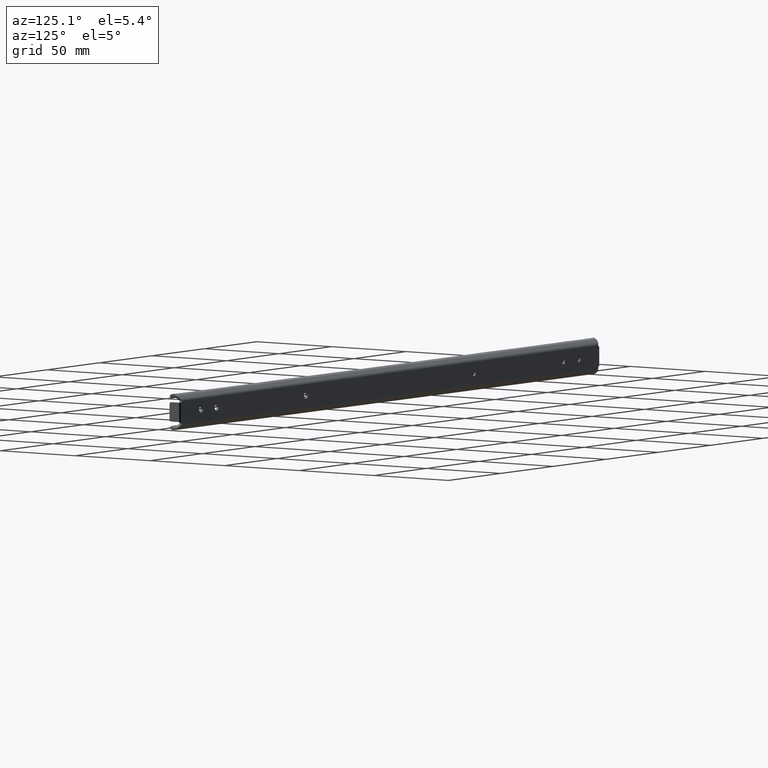
[diagram: clean part render]
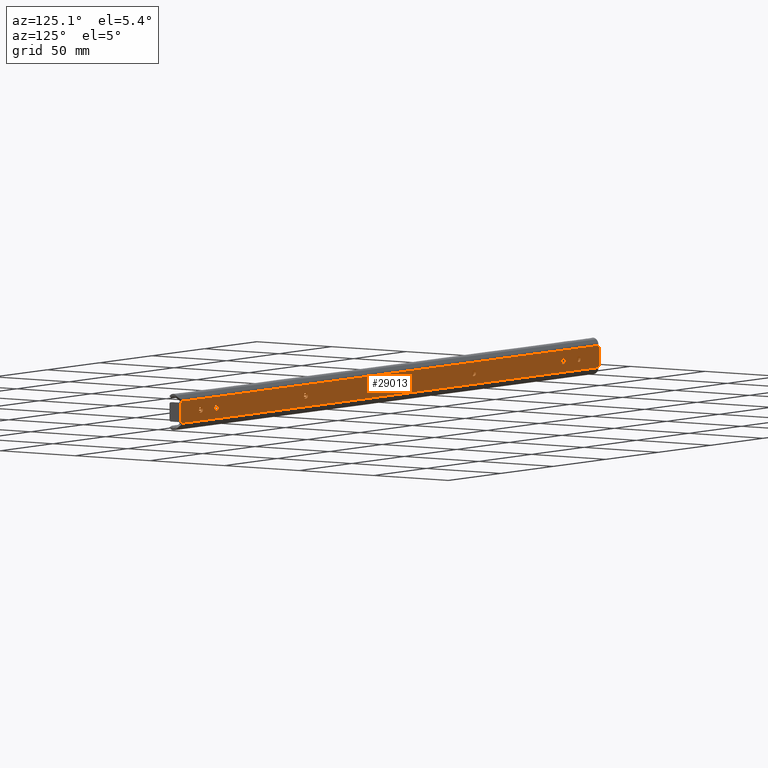
[diagram: same view with one face highlighted and labeled with its STEP entity id]
A machine part, auxiliary view. The second image highlights one B-rep face of the part: STEP entity #29013.
In plain terms, the highlighted face is a freeform B-spline surface patch.
Its self-contained STEP definition (entity closure, byte-faithful):
#25588=CARTESIAN_POINT('',(21.588815242142910,4.968999E-017,-0.188854775778495));
#25589=VERTEX_POINT('',#25588);
#25590=CARTESIAN_POINT('',(20.0,0.0,1.600000000000000));
#25591=VERTEX_POINT('',#25590);
#25592=CARTESIAN_POINT('',(21.588815242142914,4.968999E-017,-0.188854775778495));
#25593=CARTESIAN_POINT('',(21.599999999999998,0.0,-0.094758591774202));
#25594=CARTESIAN_POINT('',(21.600000000000001,0.0,0.0));
#25595=CARTESIAN_POINT('',(21.600000000000005,0.0,1.600000000000000));
#25596=CARTESIAN_POINT('',(20.0,0.0,1.600000000000000));
#25604=(BOUNDED_CURVE()B_SPLINE_CURVE(2,(#25592,#25593,#25594,#25595,#25596),.UNSPECIFIED.,.F.,.U.)B_SPLINE_CURVE_WITH_KNOTS((3,2,3),(0.729562473445933,0.750000000000000,1.0),.UNSPECIFIED.)CURVE()GEOMETRIC_REPRESENTATION_ITEM()RATIONAL_B_SPLINE_CURVE((0.956026754051249,0.976055948251976,1.0,0.707106781186548,1.0))REPRESENTATION_ITEM(''));
#25605=EDGE_CURVE('',#25589,#25591,#25604,.T.);
#25646=CARTESIAN_POINT('',(18.402984322571509,-3.122502E-017,0.097677664016044));
#25647=VERTEX_POINT('',#25646);
#25653=CARTESIAN_POINT('',(20.0,0.0,1.600000000000000));
#25654=CARTESIAN_POINT('',(18.494870294386622,0.0,1.600000000000001));
#25655=CARTESIAN_POINT('',(18.402984322571516,-3.122502E-017,0.097677664016044));
#25663=(BOUNDED_CURVE()B_SPLINE_CURVE(2,(#25653,#25654,#25655),.UNSPECIFIED.,.F.,.U.)B_SPLINE_CURVE_WITH_KNOTS((3,3),(0.0,0.239332962077684),.UNSPECIFIED.)CURVE()GEOMETRIC_REPRESENTATION_ITEM()RATIONAL_B_SPLINE_CURVE((1.0,0.719603993475637,0.976072041321108))REPRESENTATION_ITEM(''));
#25664=EDGE_CURVE('',#25591,#25647,#25663,.T.);
#25687=CARTESIAN_POINT('',(20.0,0.0,-1.600000000000000));
#25688=VERTEX_POINT('',#25687);
#25689=CARTESIAN_POINT('',(20.0,0.0,-1.600000000000000));
#25690=CARTESIAN_POINT('',(21.421079240931885,0.0,-1.599999999999999));
#25691=CARTESIAN_POINT('',(21.588815242142918,4.968999E-017,-0.188854775778495));
#25699=(BOUNDED_CURVE()B_SPLINE_CURVE(2,(#25689,#25690,#25691),.UNSPECIFIED.,.F.,.U.)B_SPLINE_CURVE_WITH_KNOTS((3,3),(0.500000000000000,0.729562473445932),.UNSPECIFIED.)CURVE()GEOMETRIC_REPRESENTATION_ITEM()RATIONAL_B_SPLINE_CURVE((1.0,0.731050832934573,0.956026754051247))REPRESENTATION_ITEM(''));
#25700=EDGE_CURVE('',#25688,#25589,#25699,.T.);
#25702=CARTESIAN_POINT('',(18.402984322571513,-3.122502E-017,0.097677664016044));
#25703=CARTESIAN_POINT('',(18.399999999999999,0.0,0.048884422040146));
#25704=CARTESIAN_POINT('',(18.399999999999999,0.0,0.0));
#25705=CARTESIAN_POINT('',(18.399999999999991,0.0,-1.600000000000000));
#25706=CARTESIAN_POINT('',(20.0,0.0,-1.600000000000000));
#25714=(BOUNDED_CURVE()B_SPLINE_CURVE(2,(#25702,#25703,#25704,#25705,#25706),.UNSPECIFIED.,.F.,.U.)B_SPLINE_CURVE_WITH_KNOTS((3,2,3),(0.239332962077684,0.250000000000000,0.500000000000000),.UNSPECIFIED.)CURVE()GEOMETRIC_REPRESENTATION_ITEM()RATIONAL_B_SPLINE_CURVE((0.976072041321108,0.987502787710910,1.0,0.707106781186548,1.0))REPRESENTATION_ITEM(''));
#25715=EDGE_CURVE('',#25647,#25688,#25714,.T.);
#25789=CARTESIAN_POINT('',(34.700000000000003,1.110223E-013,-1.600000000000000));
#25790=VERTEX_POINT('',#25789);
#25796=CARTESIAN_POINT('',(34.700000000000003,0.0,1.600000000000000));
#25797=VERTEX_POINT('',#25796);
#25798=CARTESIAN_POINT('',(34.700000000000003,0.0,1.600000000000000));
#25799=CARTESIAN_POINT('',(33.100000000000009,0.0,1.600000000000000));
#25800=CARTESIAN_POINT('',(33.100000000000001,0.0,0.0));
#25801=CARTESIAN_POINT('',(33.100000000000009,0.0,-1.600000000000000));
#25802=CARTESIAN_POINT('',(34.700000000000003,1.110223E-013,-1.600000000000000));
#25810=(BOUNDED_CURVE()B_SPLINE_CURVE(2,(#25798,#25799,#25800,#25801,#25802),.UNSPECIFIED.,.F.,.U.)B_SPLINE_CURVE_WITH_KNOTS((3,2,3),(0.0,0.500000000000000,1.0),.UNSPECIFIED.)CURVE()GEOMETRIC_REPRESENTATION_ITEM()RATIONAL_B_SPLINE_CURVE((1.0,0.707106781186548,1.0,0.707106781186548,1.0))REPRESENTATION_ITEM(''));
#25811=EDGE_CURVE('',#25797,#25790,#25810,.T.);
#25826=CARTESIAN_POINT('',(35.299999999999997,0.0,-1.600000000000000));
#25827=VERTEX_POINT('',#25826);
#25835=CARTESIAN_POINT('',(35.299999999999997,0.0,-1.600000000000000));
#25836=CARTESIAN_POINT('',(34.700000000000003,1.110223E-013,-1.600000000000000));
#25837=QUASI_UNIFORM_CURVE('',1,(#25835,#25836),.UNSPECIFIED.,.F.,.U.);
#25838=EDGE_CURVE('',#25827,#25790,#25837,.T.);
#25884=CARTESIAN_POINT('',(35.299999999999997,0.0,1.600000000000000));
#25885=VERTEX_POINT('',#25884);
#25891=CARTESIAN_POINT('',(35.299999999999997,0.0,-1.600000000000000));
#25892=CARTESIAN_POINT('',(36.900000000000006,0.0,-1.600000000000000));
#25893=CARTESIAN_POINT('',(36.899999999999999,0.0,0.0));
#25894=CARTESIAN_POINT('',(36.900000000000006,0.0,1.600000000000000));
#25895=CARTESIAN_POINT('',(35.299999999999997,0.0,1.600000000000000));
#25903=(BOUNDED_CURVE()B_SPLINE_CURVE(2,(#25891,#25892,#25893,#25894,#25895),.UNSPECIFIED.,.F.,.U.)B_SPLINE_CURVE_WITH_KNOTS((3,2,3),(0.0,0.500000000000000,1.0),.UNSPECIFIED.)CURVE()GEOMETRIC_REPRESENTATION_ITEM()RATIONAL_B_SPLINE_CURVE((1.0,0.707106781186548,1.0,0.707106781186548,1.0))REPRESENTATION_ITEM(''));
#25904=EDGE_CURVE('',#25827,#25885,#25903,.T.);
#25916=CARTESIAN_POINT('',(34.700000000000003,0.0,1.600000000000000));
#25917=CARTESIAN_POINT('',(35.299999999999997,0.0,1.600000000000000));
#25918=QUASI_UNIFORM_CURVE('',1,(#25916,#25917),.UNSPECIFIED.,.F.,.U.);
#25919=EDGE_CURVE('',#25797,#25885,#25918,.T.);
#25944=CARTESIAN_POINT('',(120.300000000000000,8.526513E-014,-1.600000000000080));
#25945=VERTEX_POINT('',#25944);
#25951=CARTESIAN_POINT('',(119.700000000000000,0.0,-1.600000000000000));
#25952=VERTEX_POINT('',#25951);
#25953=CARTESIAN_POINT('',(119.700000000000000,0.0,-1.600000000000000));
#25954=CARTESIAN_POINT('',(120.300000000000000,8.526513E-014,-1.600000000000080));
#25955=QUASI_UNIFORM_CURVE('',1,(#25953,#25954),.UNSPECIFIED.,.F.,.U.);
#25956=EDGE_CURVE('',#25952,#25945,#25955,.T.);
#26002=CARTESIAN_POINT('',(119.700000000000000,0.0,1.600000000000025));
#26003=VERTEX_POINT('',#26002);
#26004=CARTESIAN_POINT('',(119.700000000000000,0.0,1.600000000000000));
#26005=CARTESIAN_POINT('',(118.099999999999980,0.0,1.600000000000000));
#26006=CARTESIAN_POINT('',(118.099999999999990,0.0,0.0));
#26007=CARTESIAN_POINT('',(118.099999999999980,0.0,-1.600000000000000));
#26008=CARTESIAN_POINT('',(119.700000000000000,0.0,-1.600000000000000));
#26016=(BOUNDED_CURVE()B_SPLINE_CURVE(2,(#26004,#26005,#26006,#26007,#26008),.UNSPECIFIED.,.F.,.U.)B_SPLINE_CURVE_WITH_KNOTS((3,2,3),(0.0,0.500000000000000,1.0),.UNSPECIFIED.)CURVE()GEOMETRIC_REPRESENTATION_ITEM()RATIONAL_B_SPLINE_CURVE((1.0,0.707106781186548,1.0,0.707106781186548,1.0))REPRESENTATION_ITEM(''));
#26017=EDGE_CURVE('',#26003,#25952,#26016,.T.);
#26040=CARTESIAN_POINT('',(120.300000000000000,0.0,1.600000000000025));
#26041=VERTEX_POINT('',#26040);
#26042=CARTESIAN_POINT('',(120.300000000000000,0.0,1.600000000000025));
#26043=CARTESIAN_POINT('',(119.700000000000000,0.0,1.600000000000025));
#26044=QUASI_UNIFORM_CURVE('',1,(#26042,#26043),.UNSPECIFIED.,.F.,.U.);
#26045=EDGE_CURVE('',#26041,#26003,#26044,.T.);
#26089=CARTESIAN_POINT('',(120.300000000000000,0.0,-1.600000000000000));
#26090=CARTESIAN_POINT('',(121.900000000000010,0.0,-1.600000000000000));
#26091=CARTESIAN_POINT('',(121.900000000000010,0.0,0.0));
#26092=CARTESIAN_POINT('',(121.900000000000010,0.0,1.600000000000000));
#26093=CARTESIAN_POINT('',(120.300000000000000,0.0,1.600000000000000));
#26101=(BOUNDED_CURVE()B_SPLINE_CURVE(2,(#26089,#26090,#26091,#26092,#26093),.UNSPECIFIED.,.F.,.U.)B_SPLINE_CURVE_WITH_KNOTS((3,2,3),(0.0,0.500000000000000,1.0),.UNSPECIFIED.)CURVE()GEOMETRIC_REPRESENTATION_ITEM()RATIONAL_B_SPLINE_CURVE((1.0,0.707106781186548,1.0,0.707106781186548,1.0))REPRESENTATION_ITEM(''));
#26102=EDGE_CURVE('',#25945,#26041,#26101,.T.);
#26122=CARTESIAN_POINT('',(380.300000000000010,8.526513E-014,-1.600000000000000));
#26123=VERTEX_POINT('',#26122);
#26129=CARTESIAN_POINT('',(379.699999999999990,0.0,-1.600000000000025));
#26130=VERTEX_POINT('',#26129);
#26131=CARTESIAN_POINT('',(379.699999999999990,0.0,-1.600000000000025));
#26132=CARTESIAN_POINT('',(380.300000000000010,8.526513E-014,-1.600000000000000));
#26133=QUASI_UNIFORM_CURVE('',1,(#26131,#26132),.UNSPECIFIED.,.F.,.U.);
#26134=EDGE_CURVE('',#26130,#26123,#26133,.T.);
#26180=CARTESIAN_POINT('',(379.699999999999990,0.0,1.599999999999795));
#26181=VERTEX_POINT('',#26180);
#26182=CARTESIAN_POINT('',(379.699999999999990,0.0,1.600000000000025));
#26183=CARTESIAN_POINT('',(378.100000000000020,0.0,1.600000000000026));
#26184=CARTESIAN_POINT('',(378.099999999999910,0.0,0.0));
#26185=CARTESIAN_POINT('',(378.100000000000020,0.0,-1.600000000000026));
#26186=CARTESIAN_POINT('',(379.699999999999990,0.0,-1.600000000000025));
#26194=(BOUNDED_CURVE()B_SPLINE_CURVE(2,(#26182,#26183,#26184,#26185,#26186),.UNSPECIFIED.,.F.,.U.)B_SPLINE_CURVE_WITH_KNOTS((3,2,3),(0.0,0.500000000000000,1.0),.UNSPECIFIED.)CURVE()GEOMETRIC_REPRESENTATION_ITEM()RATIONAL_B_SPLINE_CURVE((1.0,0.707106781186547,1.0,0.707106781186547,1.0))REPRESENTATION_ITEM(''));
#26195=EDGE_CURVE('',#26181,#26130,#26194,.T.);
#26218=CARTESIAN_POINT('',(380.300000000000010,0.0,1.599999999999795));
#26219=VERTEX_POINT('',#26218);
#26220=CARTESIAN_POINT('',(380.300000000000010,0.0,1.599999999999795));
#26221=CARTESIAN_POINT('',(379.699999999999990,0.0,1.599999999999795));
#26222=QUASI_UNIFORM_CURVE('',1,(#26220,#26221),.UNSPECIFIED.,.F.,.U.);
#26223=EDGE_CURVE('',#26219,#26181,#26222,.T.);
#26267=CARTESIAN_POINT('',(380.300000000000010,0.0,-1.600000000000025));
#26268=CARTESIAN_POINT('',(381.900000000000150,0.0,-1.600000000000026));
#26269=CARTESIAN_POINT('',(381.900000000000090,0.0,0.0));
#26270=CARTESIAN_POINT('',(381.900000000000150,0.0,1.600000000000026));
#26271=CARTESIAN_POINT('',(380.300000000000010,0.0,1.600000000000025));
#26279=(BOUNDED_CURVE()B_SPLINE_CURVE(2,(#26267,#26268,#26269,#26270,#26271),.UNSPECIFIED.,.F.,.U.)B_SPLINE_CURVE_WITH_KNOTS((3,2,3),(0.0,0.500000000000000,1.0),.UNSPECIFIED.)CURVE()GEOMETRIC_REPRESENTATION_ITEM()RATIONAL_B_SPLINE_CURVE((1.0,0.707106781186547,1.0,0.707106781186547,1.0))REPRESENTATION_ITEM(''));
#26280=EDGE_CURVE('',#26123,#26219,#26279,.T.);
#26300=CARTESIAN_POINT('',(365.300000000000010,8.526513E-014,-1.600000000000000));
#26301=VERTEX_POINT('',#26300);
#26307=CARTESIAN_POINT('',(364.700000000000100,0.0,-1.600000000000025));
#26308=VERTEX_POINT('',#26307);
#26309=CARTESIAN_POINT('',(364.700000000000100,0.0,-1.600000000000025));
#26310=CARTESIAN_POINT('',(365.300000000000010,8.526513E-014,-1.600000000000000));
#26311=QUASI_UNIFORM_CURVE('',1,(#26309,#26310),.UNSPECIFIED.,.F.,.U.);
#26312=EDGE_CURVE('',#26308,#26301,#26311,.T.);
#26358=CARTESIAN_POINT('',(364.700000000000100,0.0,1.599999999999795));
#26359=VERTEX_POINT('',#26358);
#26360=CARTESIAN_POINT('',(364.700000000000100,0.0,1.600000000000025));
#26361=CARTESIAN_POINT('',(363.100000000000080,0.0,1.600000000000026));
#26362=CARTESIAN_POINT('',(363.100000000000020,0.0,0.0));
#26363=CARTESIAN_POINT('',(363.100000000000080,0.0,-1.600000000000026));
#26364=CARTESIAN_POINT('',(364.700000000000100,0.0,-1.600000000000025));
#26372=(BOUNDED_CURVE()B_SPLINE_CURVE(2,(#26360,#26361,#26362,#26363,#26364),.UNSPECIFIED.,.F.,.U.)B_SPLINE_CURVE_WITH_KNOTS((3,2,3),(0.0,0.500000000000000,1.0),.UNSPECIFIED.)CURVE()GEOMETRIC_REPRESENTATION_ITEM()RATIONAL_B_SPLINE_CURVE((1.0,0.707106781186547,1.0,0.707106781186547,1.0))REPRESENTATION_ITEM(''));
#26373=EDGE_CURVE('',#26359,#26308,#26372,.T.);
#26396=CARTESIAN_POINT('',(365.300000000000010,0.0,1.599999999999795));
#26397=VERTEX_POINT('',#26396);
#26398=CARTESIAN_POINT('',(365.300000000000010,0.0,1.599999999999795));
#26399=CARTESIAN_POINT('',(364.700000000000100,0.0,1.599999999999795));
#26400=QUASI_UNIFORM_CURVE('',1,(#26398,#26399),.UNSPECIFIED.,.F.,.U.);
#26401=EDGE_CURVE('',#26397,#26359,#26400,.T.);
#26445=CARTESIAN_POINT('',(365.300000000000010,0.0,-1.600000000000025));
#26446=CARTESIAN_POINT('',(366.900000000000030,0.0,-1.600000000000026));
#26447=CARTESIAN_POINT('',(366.899999999999980,0.0,0.0));
#26448=CARTESIAN_POINT('',(366.900000000000030,0.0,1.600000000000026));
#26449=CARTESIAN_POINT('',(365.300000000000010,0.0,1.600000000000025));
#26457=(BOUNDED_CURVE()B_SPLINE_CURVE(2,(#26445,#26446,#26447,#26448,#26449),.UNSPECIFIED.,.F.,.U.)B_SPLINE_CURVE_WITH_KNOTS((3,2,3),(0.0,0.500000000000000,1.0),.UNSPECIFIED.)CURVE()GEOMETRIC_REPRESENTATION_ITEM()RATIONAL_B_SPLINE_CURVE((1.0,0.707106781186547,1.0,0.707106781186547,1.0))REPRESENTATION_ITEM(''));
#26458=EDGE_CURVE('',#26301,#26397,#26457,.T.);
#26478=CARTESIAN_POINT('',(280.300000000000010,8.526513E-014,-1.600000000000000));
#26479=VERTEX_POINT('',#26478);
#26485=CARTESIAN_POINT('',(279.699999999999990,0.0,-1.600000000000025));
#26486=VERTEX_POINT('',#26485);
#26487=CARTESIAN_POINT('',(279.699999999999990,0.0,-1.600000000000025));
#26488=CARTESIAN_POINT('',(280.300000000000010,8.526513E-014,-1.600000000000000));
#26489=QUASI_UNIFORM_CURVE('',1,(#26487,#26488),.UNSPECIFIED.,.F.,.U.);
#26490=EDGE_CURVE('',#26486,#26479,#26489,.T.);
#26536=CARTESIAN_POINT('',(279.699999999999990,0.0,1.599999999999795));
#26537=VERTEX_POINT('',#26536);
#26538=CARTESIAN_POINT('',(279.699999999999990,0.0,1.600000000000025));
#26539=CARTESIAN_POINT('',(278.099999999999910,0.0,1.600000000000026));
#26540=CARTESIAN_POINT('',(278.100000000000020,0.0,0.0));
#26541=CARTESIAN_POINT('',(278.099999999999910,0.0,-1.600000000000026));
#26542=CARTESIAN_POINT('',(279.699999999999990,0.0,-1.600000000000025));
#26550=(BOUNDED_CURVE()B_SPLINE_CURVE(2,(#26538,#26539,#26540,#26541,#26542),.UNSPECIFIED.,.F.,.U.)B_SPLINE_CURVE_WITH_KNOTS((3,2,3),(0.0,0.500000000000000,1.0),.UNSPECIFIED.)CURVE()GEOMETRIC_REPRESENTATION_ITEM()RATIONAL_B_SPLINE_CURVE((1.0,0.707106781186547,1.0,0.707106781186547,1.0))REPRESENTATION_ITEM(''));
#26551=EDGE_CURVE('',#26537,#26486,#26550,.T.);
#26574=CARTESIAN_POINT('',(280.300000000000010,0.0,1.599999999999795));
#26575=VERTEX_POINT('',#26574);
#26576=CARTESIAN_POINT('',(280.300000000000010,0.0,1.599999999999795));
#26577=CARTESIAN_POINT('',(279.699999999999990,0.0,1.599999999999795));
#26578=QUASI_UNIFORM_CURVE('',1,(#26576,#26577),.UNSPECIFIED.,.F.,.U.);
#26579=EDGE_CURVE('',#26575,#26537,#26578,.T.);
#26623=CARTESIAN_POINT('',(280.300000000000010,0.0,-1.600000000000025));
#26624=CARTESIAN_POINT('',(281.900000000000090,0.0,-1.600000000000026));
#26625=CARTESIAN_POINT('',(281.899999999999980,0.0,0.0));
#26626=CARTESIAN_POINT('',(281.900000000000090,0.0,1.600000000000026));
#26627=CARTESIAN_POINT('',(280.300000000000010,0.0,1.600000000000025));
#26635=(BOUNDED_CURVE()B_SPLINE_CURVE(2,(#26623,#26624,#26625,#26626,#26627),.UNSPECIFIED.,.F.,.U.)B_SPLINE_CURVE_WITH_KNOTS((3,2,3),(0.0,0.500000000000000,1.0),.UNSPECIFIED.)CURVE()GEOMETRIC_REPRESENTATION_ITEM()RATIONAL_B_SPLINE_CURVE((1.0,0.707106781186547,1.0,0.707106781186547,1.0))REPRESENTATION_ITEM(''));
#26636=EDGE_CURVE('',#26479,#26575,#26635,.T.);
#27091=CARTESIAN_POINT('',(399.0,1.110223E-013,5.383484940997340));
#27092=VERTEX_POINT('',#27091);
#27104=CARTESIAN_POINT('',(398.424053704473520,1.110223E-013,6.081989000000000));
#27105=VERTEX_POINT('',#27104);
#27106=CARTESIAN_POINT('',(398.999999999999890,1.110223E-013,5.383484940997259));
#27107=CARTESIAN_POINT('',(398.534727872480060,1.110223E-013,5.586546423320868));
#27108=CARTESIAN_POINT('',(398.424053704473120,1.110223E-013,6.081988999999911));
#27116=(BOUNDED_CURVE()B_SPLINE_CURVE(2,(#27106,#27107,#27108),.UNSPECIFIED.,.F.,.U.)CURVE()GEOMETRIC_REPRESENTATION_ITEM()QUASI_UNIFORM_CURVE()RATIONAL_B_SPLINE_CURVE((1.0,0.891680773275086,1.0))REPRESENTATION_ITEM(''));
#27117=EDGE_CURVE('',#27092,#27105,#27116,.T.);
#27432=CARTESIAN_POINT('',(398.424053704473520,1.110223E-013,-6.081989000000000));
#27433=VERTEX_POINT('',#27432);
#27434=CARTESIAN_POINT('',(399.0,8.526513E-014,-5.383484940997340));
#27435=VERTEX_POINT('',#27434);
#27436=CARTESIAN_POINT('',(398.424053704473120,1.110223E-013,-6.081988999999913));
#27437=CARTESIAN_POINT('',(398.534727872480060,1.110223E-013,-5.586546423320871));
#27438=CARTESIAN_POINT('',(398.999999999999890,1.110223E-013,-5.383484940997262));
#27446=(BOUNDED_CURVE()B_SPLINE_CURVE(2,(#27436,#27437,#27438),.UNSPECIFIED.,.F.,.U.)CURVE()GEOMETRIC_REPRESENTATION_ITEM()QUASI_UNIFORM_CURVE()RATIONAL_B_SPLINE_CURVE((1.0,0.891680773275086,1.0))REPRESENTATION_ITEM(''));
#27447=EDGE_CURVE('',#27433,#27435,#27446,.T.);
#27541=CARTESIAN_POINT('',(1.0,1.110223E-013,5.383484940997340));
#27542=VERTEX_POINT('',#27541);
#27556=CARTESIAN_POINT('',(1.0,1.110223E-013,-5.383484940997340));
#27557=VERTEX_POINT('',#27556);
#27558=CARTESIAN_POINT('',(1.0,1.110223E-013,-5.383484940997340));
#27559=CARTESIAN_POINT('',(1.0,1.110223E-013,5.383484940997340));
#27560=QUASI_UNIFORM_CURVE('',1,(#27558,#27559),.UNSPECIFIED.,.F.,.U.);
#27561=EDGE_CURVE('',#27557,#27542,#27560,.T.);
#28003=CARTESIAN_POINT('',(1.575946295526720,1.110223E-013,6.081989000000000));
#28004=VERTEX_POINT('',#28003);
#28005=CARTESIAN_POINT('',(0.999999999999997,1.110223E-013,5.383484940997347));
#28006=CARTESIAN_POINT('',(1.465272127519829,1.110223E-013,5.586546423321026));
#28007=CARTESIAN_POINT('',(1.575946295526721,1.110223E-013,6.081989000000000));
#28015=(BOUNDED_CURVE()B_SPLINE_CURVE(2,(#28005,#28006,#28007),.UNSPECIFIED.,.F.,.U.)CURVE()GEOMETRIC_REPRESENTATION_ITEM()QUASI_UNIFORM_CURVE()RATIONAL_B_SPLINE_CURVE((1.0,0.891680773275115,1.0))REPRESENTATION_ITEM(''));
#28016=EDGE_CURVE('',#27542,#28004,#28015,.T.);
#28229=CARTESIAN_POINT('',(1.575946295526720,1.110223E-013,-6.081989000000000));
#28230=VERTEX_POINT('',#28229);
#28231=CARTESIAN_POINT('',(1.575946295526719,1.110223E-013,-6.081989000000001));
#28232=CARTESIAN_POINT('',(1.465272127519828,1.110223E-013,-5.586546423321027));
#28233=CARTESIAN_POINT('',(0.999999999999997,1.110223E-013,-5.383484940997349));
#28241=(BOUNDED_CURVE()B_SPLINE_CURVE(2,(#28231,#28232,#28233),.UNSPECIFIED.,.F.,.U.)CURVE()GEOMETRIC_REPRESENTATION_ITEM()QUASI_UNIFORM_CURVE()RATIONAL_B_SPLINE_CURVE((1.0,0.891680773275115,1.0))REPRESENTATION_ITEM(''));
#28242=EDGE_CURVE('',#28230,#27557,#28241,.T.);
#28535=CARTESIAN_POINT('',(398.424053704473520,1.110223E-013,-6.081989000000000));
#28536=CARTESIAN_POINT('',(1.575946295526720,1.110223E-013,-6.081989000000000));
#28537=QUASI_UNIFORM_CURVE('',1,(#28535,#28536),.UNSPECIFIED.,.F.,.U.);
#28538=EDGE_CURVE('',#27433,#28230,#28537,.T.);
#28651=CARTESIAN_POINT('',(399.0,1.110223E-013,5.383484940997340));
#28652=CARTESIAN_POINT('',(399.0,8.526513E-014,-5.383484940997340));
#28653=QUASI_UNIFORM_CURVE('',1,(#28651,#28652),.UNSPECIFIED.,.F.,.U.);
#28654=EDGE_CURVE('',#27092,#27435,#28653,.T.);
#28859=CARTESIAN_POINT('',(398.424053704473520,1.110223E-013,6.081989000000000));
#28860=CARTESIAN_POINT('',(1.575946295526720,1.110223E-013,6.081989000000000));
#28861=QUASI_UNIFORM_CURVE('',1,(#28859,#28860),.UNSPECIFIED.,.F.,.U.);
#28862=EDGE_CURVE('',#27105,#28004,#28861,.T.);
#28962=CARTESIAN_POINT('',(-18.880099228598759,8.526513E-014,-6.689579519878855));
#28963=CARTESIAN_POINT('',(-18.880099228598759,8.526513E-014,6.689579084861102));
#28964=CARTESIAN_POINT('',(418.880109903790810,8.526513E-014,-6.689579519878855));
#28965=CARTESIAN_POINT('',(418.880109903790810,8.526513E-014,6.689579084861102));
#28966=B_SPLINE_SURFACE_WITH_KNOTS('',1,1,((#28962,#28964),(#28963,#28965)),.UNSPECIFIED.,.F.,.F.,.U.,(2,2),(2,2),(0.0,13.379158604739960),(0.0,437.760209132389490),.UNSPECIFIED.);
#28967=ORIENTED_EDGE('',*,*,#27117,.F.);
#28968=ORIENTED_EDGE('',*,*,#28654,.T.);
#28969=ORIENTED_EDGE('',*,*,#27447,.F.);
#28970=ORIENTED_EDGE('',*,*,#28538,.T.);
#28971=ORIENTED_EDGE('',*,*,#28242,.T.);
#28972=ORIENTED_EDGE('',*,*,#27561,.T.);
#28973=ORIENTED_EDGE('',*,*,#28016,.T.);
#28974=ORIENTED_EDGE('',*,*,#28862,.F.);
#28975=EDGE_LOOP('',(#28967,#28968,#28969,#28970,#28971,#28972,#28973,#28974));
#28976=FACE_OUTER_BOUND('',#28975,.T.);
#28977=ORIENTED_EDGE('',*,*,#26636,.T.);
#28978=ORIENTED_EDGE('',*,*,#26579,.T.);
#28979=ORIENTED_EDGE('',*,*,#26551,.T.);
#28980=ORIENTED_EDGE('',*,*,#26490,.T.);
#28981=EDGE_LOOP('',(#28977,#28978,#28979,#28980));
#28982=FACE_BOUND('',#28981,.T.);
#28983=ORIENTED_EDGE('',*,*,#26458,.T.);
#28984=ORIENTED_EDGE('',*,*,#26401,.T.);
#28985=ORIENTED_EDGE('',*,*,#26373,.T.);
#28986=ORIENTED_EDGE('',*,*,#26312,.T.);
#28987=EDGE_LOOP('',(#28983,#28984,#28985,#28986));
#28988=FACE_BOUND('',#28987,.T.);
#28989=ORIENTED_EDGE('',*,*,#26280,.T.);
#28990=ORIENTED_EDGE('',*,*,#26223,.T.);
#28991=ORIENTED_EDGE('',*,*,#26195,.T.);
#28992=ORIENTED_EDGE('',*,*,#26134,.T.);
#28993=EDGE_LOOP('',(#28989,#28990,#28991,#28992));
#28994=FACE_BOUND('',#28993,.T.);
#28995=ORIENTED_EDGE('',*,*,#26102,.T.);
#28996=ORIENTED_EDGE('',*,*,#26045,.T.);
#28997=ORIENTED_EDGE('',*,*,#26017,.T.);
#28998=ORIENTED_EDGE('',*,*,#25956,.T.);
#28999=EDGE_LOOP('',(#28995,#28996,#28997,#28998));
#29000=FACE_BOUND('',#28999,.T.);
#29001=ORIENTED_EDGE('',*,*,#25904,.T.);
#29002=ORIENTED_EDGE('',*,*,#25919,.F.);
#29003=ORIENTED_EDGE('',*,*,#25811,.T.);
#29004=ORIENTED_EDGE('',*,*,#25838,.F.);
#29005=EDGE_LOOP('',(#29001,#29002,#29003,#29004));
#29006=FACE_BOUND('',#29005,.T.);
#29007=ORIENTED_EDGE('',*,*,#25664,.T.);
#29008=ORIENTED_EDGE('',*,*,#25715,.T.);
#29009=ORIENTED_EDGE('',*,*,#25700,.T.);
#29010=ORIENTED_EDGE('',*,*,#25605,.T.);
#29011=EDGE_LOOP('',(#29007,#29008,#29009,#29010));
#29012=FACE_BOUND('',#29011,.T.);
#29013=ADVANCED_FACE('',(#28976,#28982,#28988,#28994,#29000,#29006,#29012),#28966,.T.);